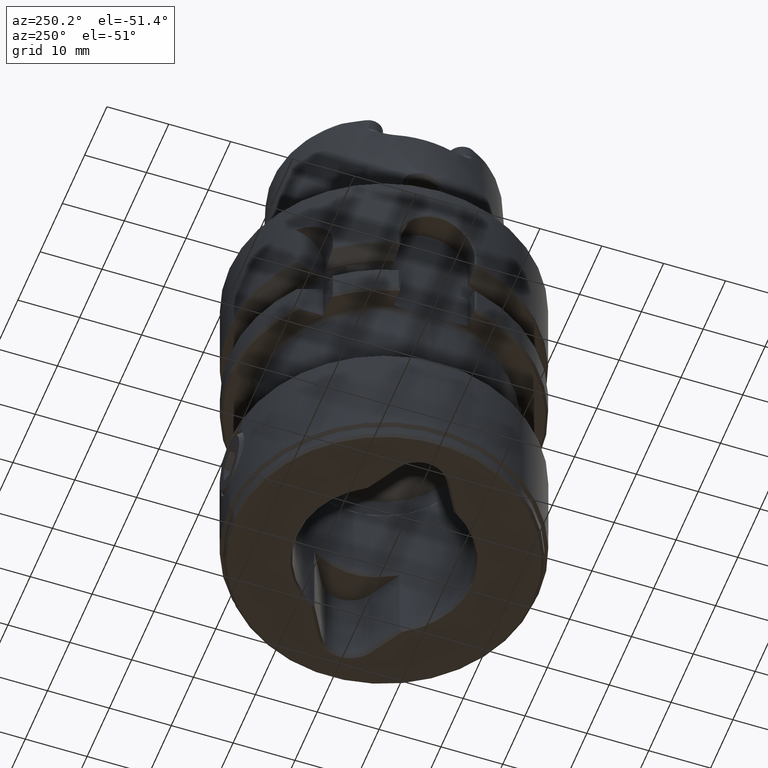
[diagram: clean part render]
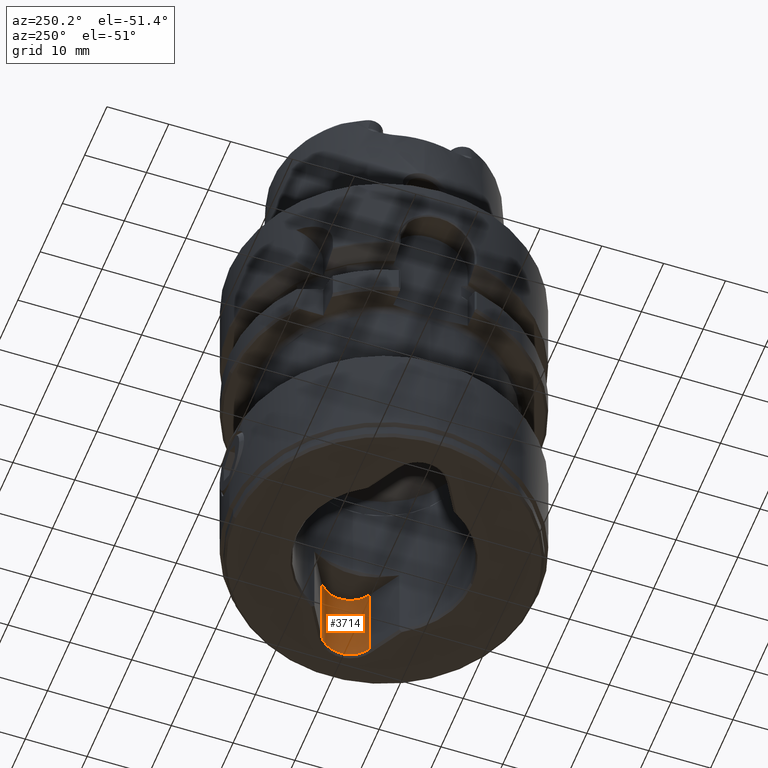
[diagram: same view with one face highlighted and labeled with its STEP entity id]
A machine part, auxiliary view. The second image highlights one B-rep face of the part: STEP entity #3714.
In plain terms, the highlighted cylindrical surface (edge-blend (fillet) strip) has radius 4.5 mm, axis along (-0, -0, 1).
Its self-contained STEP definition (entity closure, byte-faithful):
#2056=VERTEX_POINT('NONE',#5081);
#2526=VERTEX_POINT('NONE',#5591);
#2712=EDGE_CURVE('NONE',#3080,#3250,#5796,.F.);
#3026=EDGE_CURVE('NONE',#3250,#2526,#6138,.F.);
#3080=VERTEX_POINT('NONE',#6200);
#3250=VERTEX_POINT('NONE',#6392);
#3714=ADVANCED_FACE('NONE',(#6915),#6916,.F.);
#3960=EDGE_CURVE('NONE',#2056,#3080,#7187,.T.);
#4160=EDGE_CURVE('NONE',#2056,#2526,#7401,.F.);
#5081=CARTESIAN_POINT('',(17.35,-3.89711431703004,-60.6));
#5591=CARTESIAN_POINT('',(17.35,-3.89711431703004,-47.4));
#5796=LINE('',#11123,#11124);
#6138=CIRCLE('',#11943,4.5);
#6200=CARTESIAN_POINT('',(17.3499999999999,3.89711431702997,-60.6));
#6392=CARTESIAN_POINT('',(17.35,3.89711431702992,-47.4));
#6915=FACE_OUTER_BOUND('',#14429,.T.);
#6916=CYLINDRICAL_SURFACE('',#14430,4.5);
#7187=CIRCLE('',#15208,4.5);
#7401=LINE('',#15759,#15760);
#11123=CARTESIAN_POINT('',(17.35,3.89711431702992,-76.0));
#11124=VECTOR('',#18302,1.0);
#11943=AXIS2_PLACEMENT_3D('',#18663,#18664,#18665);
#14429=EDGE_LOOP('',(#19718,#19719,#19720,#19721));
#14430=AXIS2_PLACEMENT_3D('',#19722,#19723,#19724);
#15208=AXIS2_PLACEMENT_3D('',#20040,#20041,#20042);
#15759=CARTESIAN_POINT('',(17.35,-3.89711431703004,-76.0));
#15760=VECTOR('',#20228,1.0);
#18302=DIRECTION('',(0.0,0.0,-1.0));
#18663=CARTESIAN_POINT('',(15.1,-5.1796759883175E-014,-47.4));
#18664=DIRECTION('',(0.0,-0.0,1.0));
#18665=DIRECTION('',(3.46944695195361E-015,1.0,0.0));
#19718=ORIENTED_EDGE('',*,*,#3960,.F.);
#19719=ORIENTED_EDGE('',*,*,#4160,.T.);
#19720=ORIENTED_EDGE('',*,*,#3026,.F.);
#19721=ORIENTED_EDGE('',*,*,#2712,.F.);
#19722=CARTESIAN_POINT('',(15.1,-5.1796759883175E-014,-76.0));
#19723=DIRECTION('',(-0.0,-0.0,1.0));
#19724=DIRECTION('',(3.46944695195361E-015,1.0,0.0));
#20040=CARTESIAN_POINT('',(15.1,-5.1796759883175E-014,-60.6));
#20041=DIRECTION('',(0.0,-0.0,1.0));
#20042=DIRECTION('',(3.46944695195361E-015,1.0,0.0));
#20228=DIRECTION('',(0.0,0.0,-1.0));